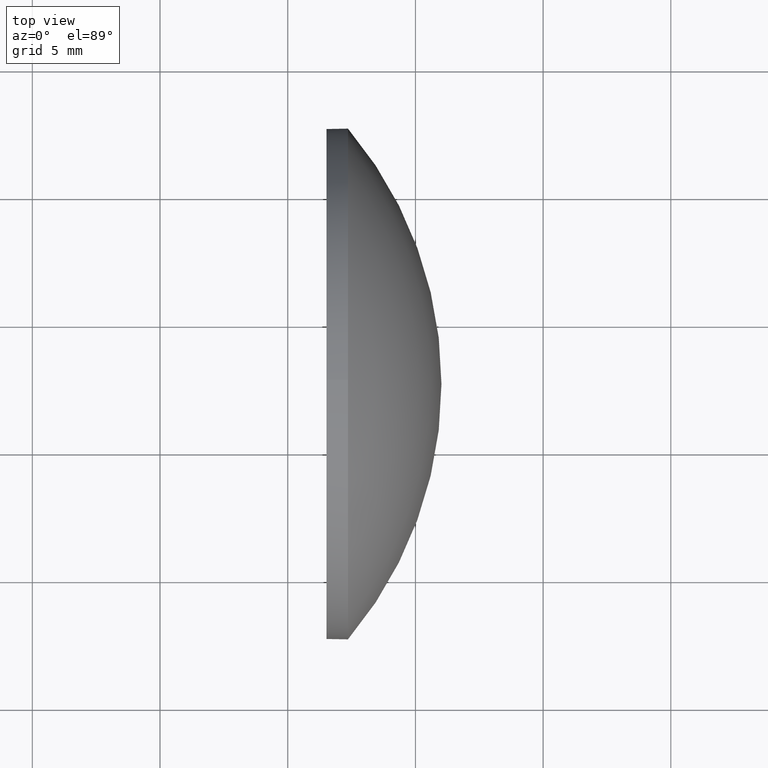
[diagram: clean part render]
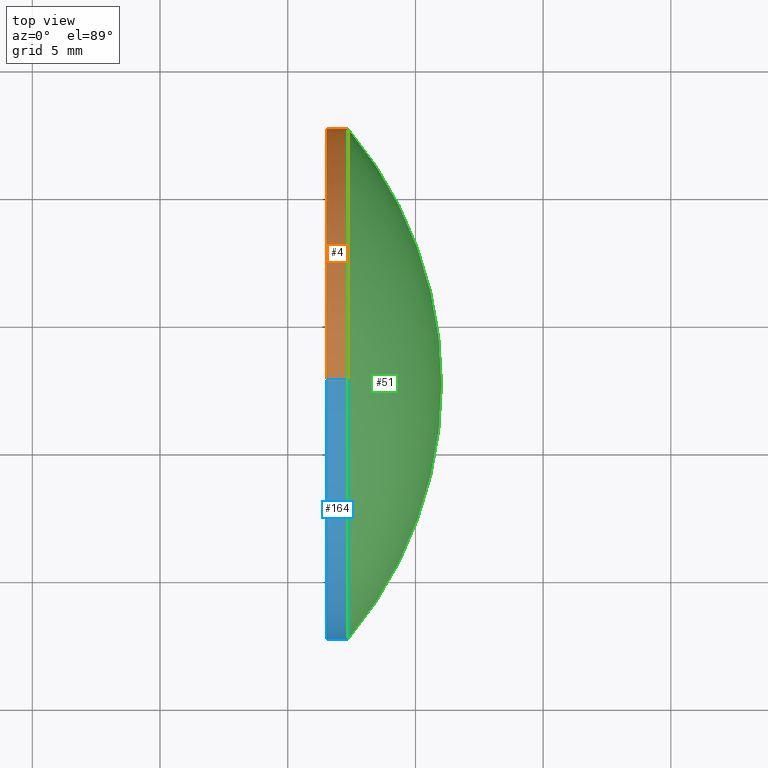
[diagram: same view with three faces highlighted in distinct colors, each labeled with its STEP entity id]
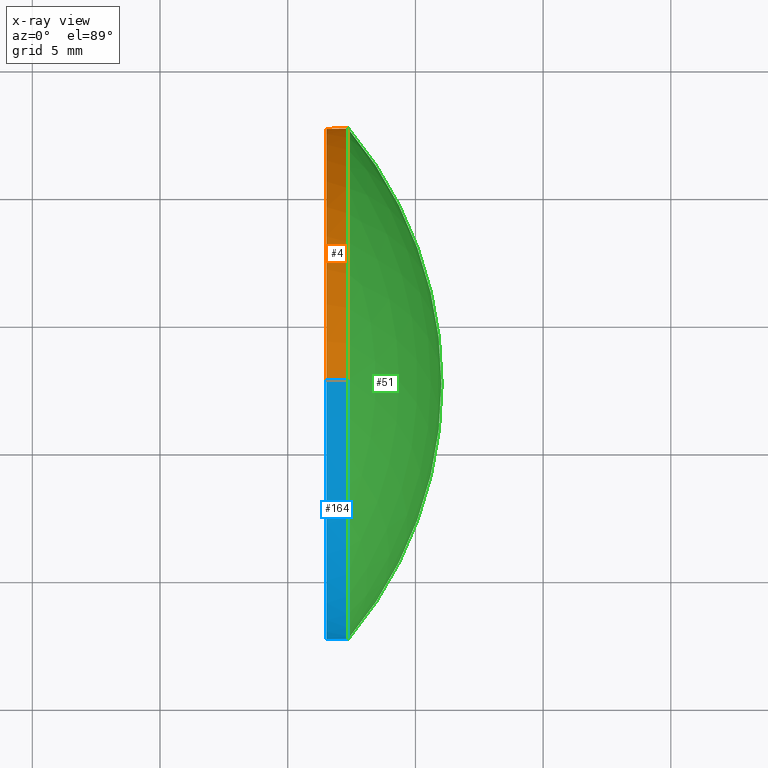
[diagram: x-ray of the same camera — body ghosted, the three highlighted faces saturated]
A machine part, top view with three faces highlighted in distinct colors.
The next image is the same camera in x-ray (body ghosted, the three faces saturated) — at least one of them is partly hidden behind the body in this view.
Their STEP definitions:

[orange] entity #4 — the highlighted cylindrical surface (partial cylindrical patch) has radius 10 mm, axis along (-1, -0, -0).
#2 = DIRECTION ( 'NONE',  ( -1.000000000000000000, -0.0000000000000000000, -0.0000000000000000000 ) ) ;
#4 = ADVANCED_FACE ( 'NONE', ( #6 ), #167, .T. ) ;
#6 = FACE_OUTER_BOUND ( 'NONE', #92, .T. ) ;
#8 = CARTESIAN_POINT ( 'NONE',  ( 442.3599078379599000, 92.59863873987114900, 1.224646799147351700E-015 ) ) ;
#11 = LINE ( 'NONE', #47, #74 ) ;
#14 = AXIS2_PLACEMENT_3D ( 'NONE', #76, #141, #143 ) ;
#18 = EDGE_CURVE ( 'NONE', #36, #131, #116, .T. ) ;
#24 = VERTEX_POINT ( 'NONE', #90 ) ;
#28 = ORIENTED_EDGE ( 'NONE', *, *, #122, .T. ) ;
#32 = DIRECTION ( 'NONE',  ( 0.0000000000000000000, 0.0000000000000000000, 1.000000000000000000 ) ) ;
#34 = CARTESIAN_POINT ( 'NONE',  ( 441.5199078379598600, 82.59863873987114900, 9.999999999999994700 ) ) ;
#36 = VERTEX_POINT ( 'NONE', #40 ) ;
#37 = CARTESIAN_POINT ( 'NONE',  ( 439.8966217752103500, 82.59863873987114900, 0.0000000000000000000 ) ) ;
#38 = EDGE_CURVE ( 'NONE', #87, #24, #163, .T. ) ;
#40 = CARTESIAN_POINT ( 'NONE',  ( 442.3599078379599000, 82.59863873987114900, 9.999999999999994700 ) ) ;
#47 = CARTESIAN_POINT ( 'NONE',  ( 439.8966217752103500, 82.59863873987114900, -9.999999999999994700 ) ) ;
#56 = DIRECTION ( 'NONE',  ( 0.0000000000000000000, 0.0000000000000000000, 1.000000000000000000 ) ) ;
#57 = EDGE_CURVE ( 'NONE', #36, #87, #117, .T. ) ;
#60 = CARTESIAN_POINT ( 'NONE',  ( 442.3599078379599000, 82.59863873987114900, 0.0000000000000000000 ) ) ;
#65 = DIRECTION ( 'NONE',  ( 0.0000000000000000000, 0.0000000000000000000, 1.000000000000000000 ) ) ;
#66 = ORIENTED_EDGE ( 'NONE', *, *, #151, .F. ) ;
#74 = VECTOR ( 'NONE', #160, 1000.000000000000000 ) ;
#76 = CARTESIAN_POINT ( 'NONE',  ( 442.3599078379599000, 82.59863873987114900, 0.0000000000000000000 ) ) ;
#85 = DIRECTION ( 'NONE',  ( -1.000000000000000000, -0.0000000000000000000, -0.0000000000000000000 ) ) ;
#87 = VERTEX_POINT ( 'NONE', #8 ) ;
#90 = CARTESIAN_POINT ( 'NONE',  ( 442.3599078379599000, 82.59863873987114900, -9.999999999999994700 ) ) ;
#92 = EDGE_LOOP ( 'NONE', ( #177, #28, #66, #127, #170 ) ) ;
#93 = CIRCLE ( 'NONE', #107, 9.999999999999994700 ) ;
#106 = AXIS2_PLACEMENT_3D ( 'NONE', #37, #2, #65 ) ;
#107 = AXIS2_PLACEMENT_3D ( 'NONE', #174, #85, #32 ) ;
#108 = CARTESIAN_POINT ( 'NONE',  ( 439.8966217752103500, 82.59863873987114900, 9.999999999999994700 ) ) ;
#114 = DIRECTION ( 'NONE',  ( -1.000000000000000000, -0.0000000000000000000, -0.0000000000000000000 ) ) ;
#116 = LINE ( 'NONE', #108, #120 ) ;
#117 = CIRCLE ( 'NONE', #118, 9.999999999999994700 ) ;
#118 = AXIS2_PLACEMENT_3D ( 'NONE', #60, #114, #56 ) ;
#120 = VECTOR ( 'NONE', #121, 1000.000000000000000 ) ;
#121 = DIRECTION ( 'NONE',  ( -1.000000000000000000, -0.0000000000000000000, -0.0000000000000000000 ) ) ;
#122 = EDGE_CURVE ( 'NONE', #24, #179, #11, .T. ) ;
#127 = ORIENTED_EDGE ( 'NONE', *, *, #18, .F. ) ;
#131 = VERTEX_POINT ( 'NONE', #34 ) ;
#132 = CARTESIAN_POINT ( 'NONE',  ( 441.5199078379598600, 82.59863873987114900, -9.999999999999994700 ) ) ;
#141 = DIRECTION ( 'NONE',  ( -1.000000000000000000, -0.0000000000000000000, -0.0000000000000000000 ) ) ;
#143 = DIRECTION ( 'NONE',  ( 0.0000000000000000000, 0.0000000000000000000, 1.000000000000000000 ) ) ;
#151 = EDGE_CURVE ( 'NONE', #131, #179, #93, .T. ) ;
#160 = DIRECTION ( 'NONE',  ( -1.000000000000000000, -0.0000000000000000000, -0.0000000000000000000 ) ) ;
#163 = CIRCLE ( 'NONE', #14, 9.999999999999994700 ) ;
#167 = CYLINDRICAL_SURFACE ( 'NONE', #106, 9.999999999999994700 ) ;
#170 = ORIENTED_EDGE ( 'NONE', *, *, #57, .T. ) ;
#174 = CARTESIAN_POINT ( 'NONE',  ( 441.5199078379598600, 82.59863873987114900, 0.0000000000000000000 ) ) ;
#177 = ORIENTED_EDGE ( 'NONE', *, *, #38, .T. ) ;
#179 = VERTEX_POINT ( 'NONE', #132 ) ;

[blue] entity #164 — the highlighted cylindrical surface (partial cylindrical patch) has radius 10 mm, axis along (-1, -0, -0).
#7 = DIRECTION ( 'NONE',  ( -1.000000000000000000, -0.0000000000000000000, -0.0000000000000000000 ) ) ;
#11 = LINE ( 'NONE', #47, #74 ) ;
#18 = EDGE_CURVE ( 'NONE', #36, #131, #116, .T. ) ;
#24 = VERTEX_POINT ( 'NONE', #90 ) ;
#27 = ORIENTED_EDGE ( 'NONE', *, *, #94, .T. ) ;
#30 = EDGE_CURVE ( 'NONE', #59, #36, #83, .T. ) ;
#34 = CARTESIAN_POINT ( 'NONE',  ( 441.5199078379598600, 82.59863873987114900, 9.999999999999994700 ) ) ;
#36 = VERTEX_POINT ( 'NONE', #40 ) ;
#40 = CARTESIAN_POINT ( 'NONE',  ( 442.3599078379599000, 82.59863873987114900, 9.999999999999994700 ) ) ;
#44 = CARTESIAN_POINT ( 'NONE',  ( 442.3599078379599000, 82.59863873987114900, 0.0000000000000000000 ) ) ;
#47 = CARTESIAN_POINT ( 'NONE',  ( 439.8966217752103500, 82.59863873987114900, -9.999999999999994700 ) ) ;
#48 = CIRCLE ( 'NONE', #142, 9.999999999999994700 ) ;
#49 = FACE_OUTER_BOUND ( 'NONE', #147, .T. ) ;
#50 = ORIENTED_EDGE ( 'NONE', *, *, #52, .F. ) ;
#52 = EDGE_CURVE ( 'NONE', #179, #131, #159, .T. ) ;
#58 = DIRECTION ( 'NONE',  ( 0.0000000000000000000, 0.0000000000000000000, 1.000000000000000000 ) ) ;
#59 = VERTEX_POINT ( 'NONE', #182 ) ;
#61 = DIRECTION ( 'NONE',  ( -1.000000000000000000, -0.0000000000000000000, -0.0000000000000000000 ) ) ;
#64 = ORIENTED_EDGE ( 'NONE', *, *, #122, .F. ) ;
#68 = CARTESIAN_POINT ( 'NONE',  ( 442.3599078379599000, 82.59863873987114900, 0.0000000000000000000 ) ) ;
#70 = DIRECTION ( 'NONE',  ( 0.0000000000000000000, 0.0000000000000000000, 1.000000000000000000 ) ) ;
#74 = VECTOR ( 'NONE', #160, 1000.000000000000000 ) ;
#75 = AXIS2_PLACEMENT_3D ( 'NONE', #97, #7, #146 ) ;
#82 = CARTESIAN_POINT ( 'NONE',  ( 439.8966217752103500, 82.59863873987114900, 0.0000000000000000000 ) ) ;
#83 = CIRCLE ( 'NONE', #173, 9.999999999999994700 ) ;
#90 = CARTESIAN_POINT ( 'NONE',  ( 442.3599078379599000, 82.59863873987114900, -9.999999999999994700 ) ) ;
#94 = EDGE_CURVE ( 'NONE', #24, #59, #48, .T. ) ;
#97 = CARTESIAN_POINT ( 'NONE',  ( 441.5199078379598600, 82.59863873987114900, 0.0000000000000000000 ) ) ;
#99 = ORIENTED_EDGE ( 'NONE', *, *, #30, .T. ) ;
#108 = CARTESIAN_POINT ( 'NONE',  ( 439.8966217752103500, 82.59863873987114900, 9.999999999999994700 ) ) ;
#112 = DIRECTION ( 'NONE',  ( 0.0000000000000000000, 0.0000000000000000000, 1.000000000000000000 ) ) ;
#116 = LINE ( 'NONE', #108, #120 ) ;
#120 = VECTOR ( 'NONE', #121, 1000.000000000000000 ) ;
#121 = DIRECTION ( 'NONE',  ( -1.000000000000000000, -0.0000000000000000000, -0.0000000000000000000 ) ) ;
#122 = EDGE_CURVE ( 'NONE', #24, #179, #11, .T. ) ;
#128 = CYLINDRICAL_SURFACE ( 'NONE', #138, 9.999999999999994700 ) ;
#131 = VERTEX_POINT ( 'NONE', #34 ) ;
#132 = CARTESIAN_POINT ( 'NONE',  ( 441.5199078379598600, 82.59863873987114900, -9.999999999999994700 ) ) ;
#138 = AXIS2_PLACEMENT_3D ( 'NONE', #82, #171, #58 ) ;
#142 = AXIS2_PLACEMENT_3D ( 'NONE', #44, #61, #70 ) ;
#146 = DIRECTION ( 'NONE',  ( 0.0000000000000000000, 0.0000000000000000000, 1.000000000000000000 ) ) ;
#147 = EDGE_LOOP ( 'NONE', ( #64, #27, #99, #155, #50 ) ) ;
#148 = DIRECTION ( 'NONE',  ( -1.000000000000000000, -0.0000000000000000000, -0.0000000000000000000 ) ) ;
#155 = ORIENTED_EDGE ( 'NONE', *, *, #18, .T. ) ;
#159 = CIRCLE ( 'NONE', #75, 9.999999999999994700 ) ;
#160 = DIRECTION ( 'NONE',  ( -1.000000000000000000, -0.0000000000000000000, -0.0000000000000000000 ) ) ;
#164 = ADVANCED_FACE ( 'NONE', ( #49 ), #128, .T. ) ;
#171 = DIRECTION ( 'NONE',  ( -1.000000000000000000, -0.0000000000000000000, -0.0000000000000000000 ) ) ;
#173 = AXIS2_PLACEMENT_3D ( 'NONE', #68, #148, #112 ) ;
#179 = VERTEX_POINT ( 'NONE', #132 ) ;
#182 = CARTESIAN_POINT ( 'NONE',  ( 442.3599078379599000, 72.59863873987116300, 0.0000000000000000000 ) ) ;

[green] entity #51 — the highlighted spherical surface has radius 15.4912 mm.
#1 = EDGE_CURVE ( 'NONE', #55, #59, #77, .T. ) ;
#8 = CARTESIAN_POINT ( 'NONE',  ( 442.3599078379599000, 92.59863873987114900, 1.224646799147351700E-015 ) ) ;
#12 = DIRECTION ( 'NONE',  ( 0.0000000000000000000, -1.224646799147353200E-016, 1.000000000000000000 ) ) ;
#21 = ORIENTED_EDGE ( 'NONE', *, *, #30, .F. ) ;
#22 = CARTESIAN_POINT ( 'NONE',  ( 430.5287056521675600, 82.59863873987116300, 0.0000000000000000000 ) ) ;
#23 = ORIENTED_EDGE ( 'NONE', *, *, #57, .F. ) ;
#25 = DIRECTION ( 'NONE',  ( 0.0000000000000000000, -1.000000000000000000, 0.0000000000000000000 ) ) ;
#29 = DIRECTION ( 'NONE',  ( 0.0000000000000000000, -1.000000000000000000, -1.224646799147352700E-016 ) ) ;
#30 = EDGE_CURVE ( 'NONE', #59, #36, #83, .T. ) ;
#36 = VERTEX_POINT ( 'NONE', #40 ) ;
#39 = DIRECTION ( 'NONE',  ( 0.0000000000000000000, 0.0000000000000000000, -1.000000000000000000 ) ) ;
#40 = CARTESIAN_POINT ( 'NONE',  ( 442.3599078379599000, 82.59863873987114900, 9.999999999999994700 ) ) ;
#41 = CARTESIAN_POINT ( 'NONE',  ( 446.0199078379599200, 82.59863873987116300, 0.0000000000000000000 ) ) ;
#43 = CARTESIAN_POINT ( 'NONE',  ( 430.5287056521675600, 82.59863873987116300, 0.0000000000000000000 ) ) ;
#51 = ADVANCED_FACE ( 'NONE', ( #91 ), #54, .T. ) ;
#54 = SPHERICAL_SURFACE ( 'NONE', #89, 15.49120218579235700 ) ;
#55 = VERTEX_POINT ( 'NONE', #41 ) ;
#56 = DIRECTION ( 'NONE',  ( 0.0000000000000000000, 0.0000000000000000000, 1.000000000000000000 ) ) ;
#57 = EDGE_CURVE ( 'NONE', #36, #87, #117, .T. ) ;
#59 = VERTEX_POINT ( 'NONE', #182 ) ;
#60 = CARTESIAN_POINT ( 'NONE',  ( 442.3599078379599000, 82.59863873987114900, 0.0000000000000000000 ) ) ;
#68 = CARTESIAN_POINT ( 'NONE',  ( 442.3599078379599000, 82.59863873987114900, 0.0000000000000000000 ) ) ;
#69 = EDGE_LOOP ( 'NONE', ( #176, #172, #23, #21 ) ) ;
#77 = CIRCLE ( 'NONE', #81, 15.49120218579236400 ) ;
#81 = AXIS2_PLACEMENT_3D ( 'NONE', #22, #39, #165 ) ;
#83 = CIRCLE ( 'NONE', #173, 9.999999999999994700 ) ;
#87 = VERTEX_POINT ( 'NONE', #8 ) ;
#89 = AXIS2_PLACEMENT_3D ( 'NONE', #144, #98, #25 ) ;
#91 = FACE_OUTER_BOUND ( 'NONE', #69, .T. ) ;
#98 = DIRECTION ( 'NONE',  ( 0.0000000000000000000, 0.0000000000000000000, 1.000000000000000000 ) ) ;
#111 = EDGE_CURVE ( 'NONE', #55, #87, #125, .T. ) ;
#112 = DIRECTION ( 'NONE',  ( 0.0000000000000000000, 0.0000000000000000000, 1.000000000000000000 ) ) ;
#114 = DIRECTION ( 'NONE',  ( -1.000000000000000000, -0.0000000000000000000, -0.0000000000000000000 ) ) ;
#117 = CIRCLE ( 'NONE', #118, 9.999999999999994700 ) ;
#118 = AXIS2_PLACEMENT_3D ( 'NONE', #60, #114, #56 ) ;
#125 = CIRCLE ( 'NONE', #162, 15.49120218579236400 ) ;
#144 = CARTESIAN_POINT ( 'NONE',  ( 430.5287056521675600, 82.59863873987116300, 0.0000000000000000000 ) ) ;
#148 = DIRECTION ( 'NONE',  ( -1.000000000000000000, -0.0000000000000000000, -0.0000000000000000000 ) ) ;
#162 = AXIS2_PLACEMENT_3D ( 'NONE', #43, #12, #29 ) ;
#165 = DIRECTION ( 'NONE',  ( -1.000000000000000000, 0.0000000000000000000, 0.0000000000000000000 ) ) ;
#172 = ORIENTED_EDGE ( 'NONE', *, *, #111, .T. ) ;
#173 = AXIS2_PLACEMENT_3D ( 'NONE', #68, #148, #112 ) ;
#176 = ORIENTED_EDGE ( 'NONE', *, *, #1, .F. ) ;
#182 = CARTESIAN_POINT ( 'NONE',  ( 442.3599078379599000, 72.59863873987116300, 0.0000000000000000000 ) ) ;